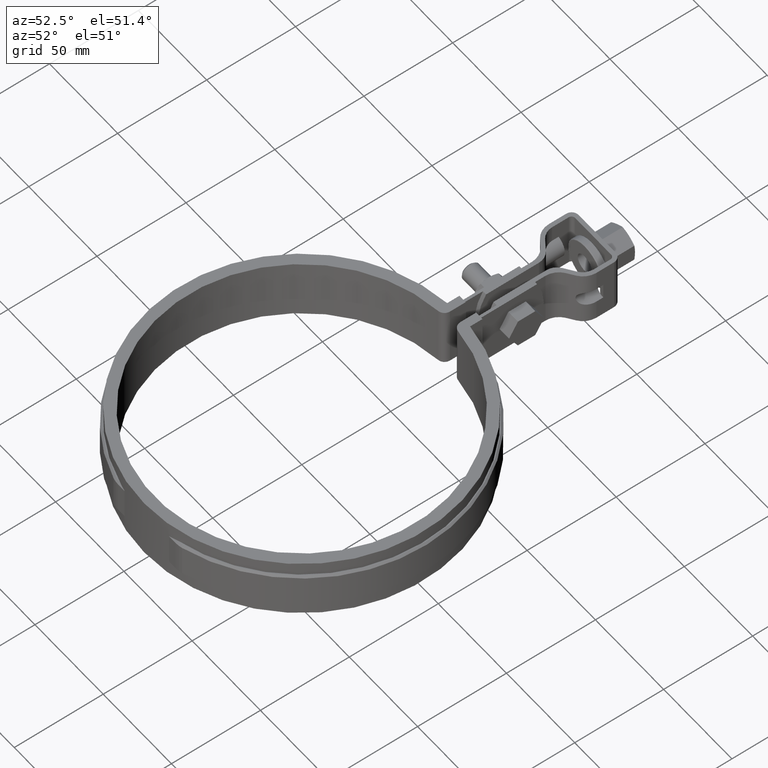
[diagram: clean part render]
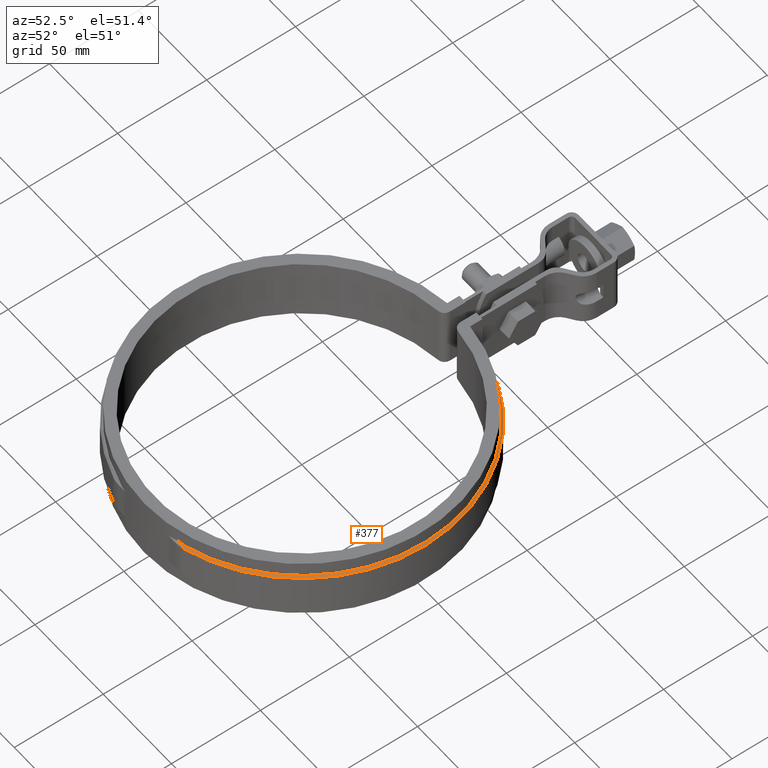
[diagram: same view with one face highlighted and labeled with its STEP entity id]
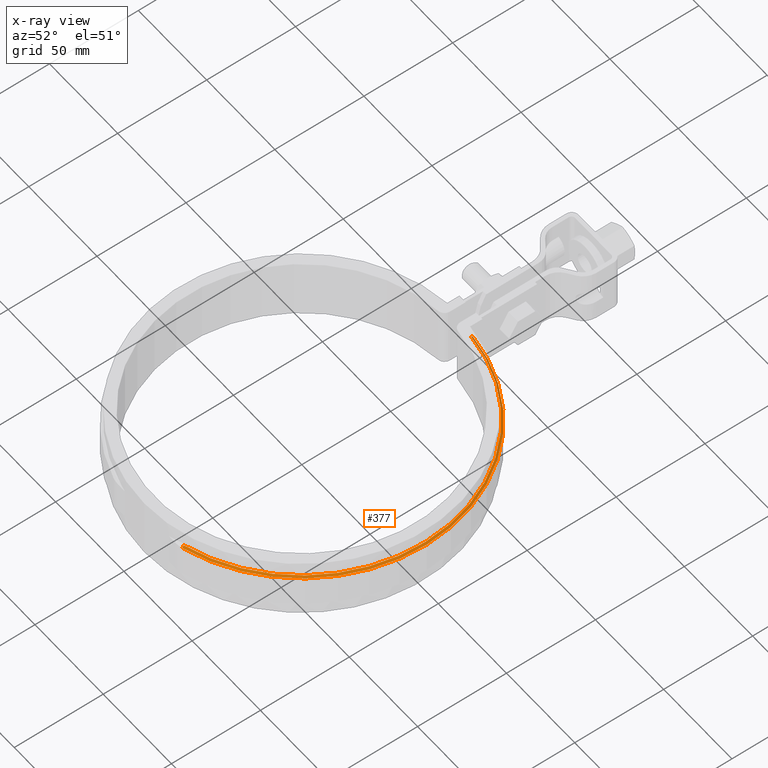
[diagram: x-ray of the same camera — body ghosted, the highlighted face saturated]
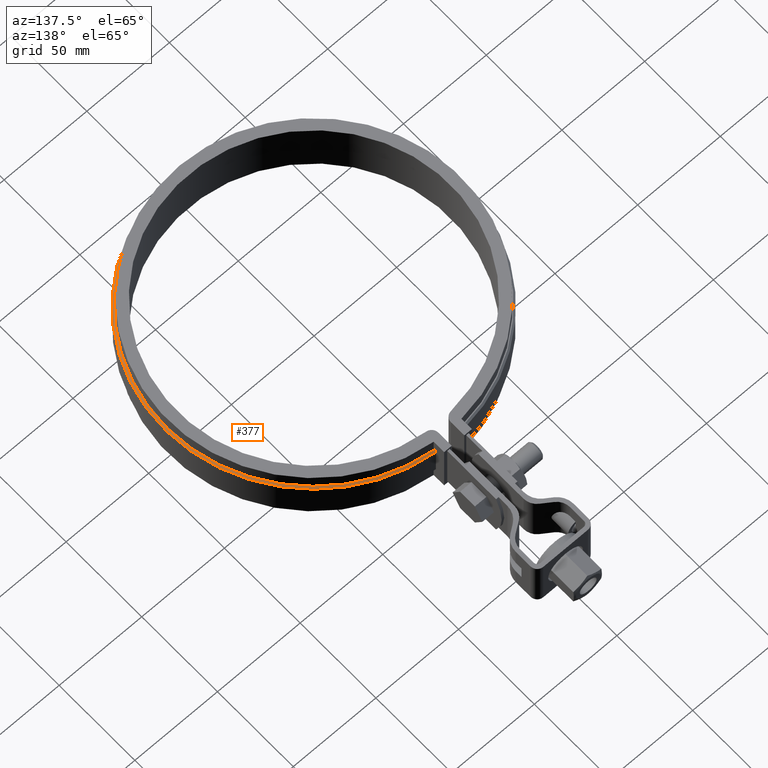
[diagram: same view with one face highlighted and labeled with its STEP entity id]
A machine part, auxiliary view. The second image highlights one B-rep face of the part: STEP entity #377.
The next image is the same camera in x-ray: the body ghosted, the highlighted face saturated — about 0% of this face is hidden behind the body in this view.
A second angle (auxiliary view) of the same face is appended — the face is thin or edge-on in the first view.
In plain terms, the highlighted conical surface has half-angle 45 deg.
Its self-contained STEP definition (entity closure, byte-faithful):
#377 = ADVANCED_FACE( '', ( #627 ), #628, .T. );
#627 = FACE_OUTER_BOUND( '', #1762, .T. );
#628 = CONICAL_SURFACE( '', #1763, 89.1000000000000, 0.785398163397441 );
#1762 = EDGE_LOOP( '', ( #4041, #4042, #4043, #4044 ) );
#1763 = AXIS2_PLACEMENT_3D( '', #4045, #4046, #4047 );
#4041 = ORIENTED_EDGE( '', *, *, #5047, .F. );
#4042 = ORIENTED_EDGE( '', *, *, #5171, .F. );
#4043 = ORIENTED_EDGE( '', *, *, #5168, .F. );
#4044 = ORIENTED_EDGE( '', *, *, #5172, .F. );
#4045 = CARTESIAN_POINT( '', ( -3.46944695195361E-015, 1.38777878078145E-014, -6.00000000000000 ) );
#4046 = DIRECTION( '', ( 0.000000000000000, 0.000000000000000, -1.00000000000000 ) );
#4047 = DIRECTION( '', ( -1.00000000000000, 0.000000000000000, 0.000000000000000 ) );
#5047 = EDGE_CURVE( '', #5574, #5577, #5578, .T. );
#5168 = EDGE_CURVE( '', #5784, #5785, #5786, .T. );
#5171 = EDGE_CURVE( '', #5785, #5574, #5789, .T. );
#5172 = EDGE_CURVE( '', #5577, #5784, #5790, .F. );
#5574 = VERTEX_POINT( '', #7394 );
#5577 = VERTEX_POINT( '', #7398 );
#5578 = B_SPLINE_CURVE_WITH_KNOTS( '', 3, ( #7399, #7400, #7401, #7402 ), .UNSPECIFIED., .F., .F., ( 4, 4 ), ( 0.000000000000000, 0.00141734515066830 ), .UNSPECIFIED. );
#5784 = VERTEX_POINT( '', #8678 );
#5785 = VERTEX_POINT( '', #8679 );
#5786 = LINE( '', #8680, #8681 );
#5789 = CIRCLE( '', #8684, 89.1000000000000 );
#5790 = CIRCLE( '', #8685, 90.1000000000000 );
#7394 = CARTESIAN_POINT( '', ( 8.39999999999999, 88.7031566518351, -6.00000000000000 ) );
#7398 = CARTESIAN_POINT( '', ( 8.39999999999999, 89.7075805046597, -6.99999999999999 ) );
#7399 = CARTESIAN_POINT( '', ( 8.39999999999999, 88.7031566518351, -6.00000000000000 ) );
#7400 = CARTESIAN_POINT( '', ( 8.39999999999999, 89.0379728961723, -6.33332500304170 ) );
#7401 = CARTESIAN_POINT( '', ( 8.39999999999999, 89.3727807548670, -6.66665842943985 ) );
#7402 = CARTESIAN_POINT( '', ( 8.39999999999999, 89.7075805046597, -7.00000000000000 ) );
#8678 = CARTESIAN_POINT( '', ( 25.2115406837686, -86.5007989347537, -6.99999999999999 ) );
#8679 = CARTESIAN_POINT( '', ( 24.9317233620842, -85.5407456724368, -6.00000000000000 ) );
#8680 = CARTESIAN_POINT( '', ( 25.2115406837686, -86.5007989347536, -7.00000000000000 ) );
#8681 = VECTOR( '', #9750, 1000.00000000000 );
#8684 = AXIS2_PLACEMENT_3D( '', #9757, #9758, #9759 );
#8685 = AXIS2_PLACEMENT_3D( '', #9760, #9761, #9762 );
#9750 = DIRECTION( '', ( -0.197860725656525, 0.678860172084549, 0.707106781186554 ) );
#9757 = CARTESIAN_POINT( '', ( -3.46944695195361E-015, 1.38777878078145E-014, -6.00000000000000 ) );
#9758 = DIRECTION( '', ( 0.000000000000000, 0.000000000000000, 1.00000000000000 ) );
#9759 = DIRECTION( '', ( 1.00000000000000, 0.000000000000000, 0.000000000000000 ) );
#9760 = CARTESIAN_POINT( '', ( -3.46944695195361E-015, 1.38777878078145E-014, -7.00000000000000 ) );
#9761 = DIRECTION( '', ( 0.000000000000000, 0.000000000000000, 1.00000000000000 ) );
#9762 = DIRECTION( '', ( 1.00000000000000, 0.000000000000000, 0.000000000000000 ) );